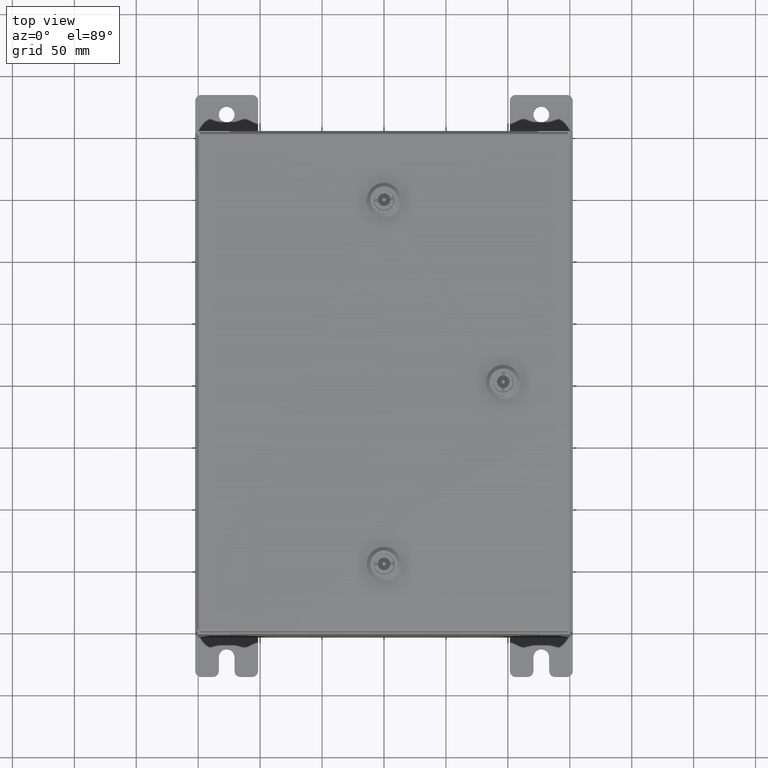
[diagram: clean part render]
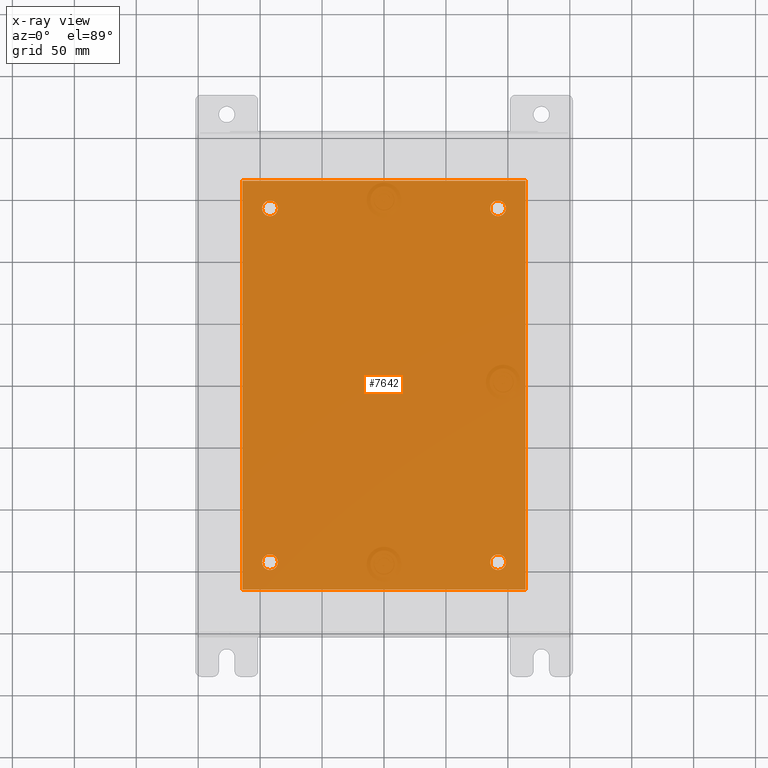
[diagram: x-ray — body ghosted, one internal face saturated and labeled with its STEP entity id]
A machine part, top view, then the same camera in x-ray: the body is ghosted and one INTERNAL B-rep face — a face not visible from any outside direction — is saturated and labeled: STEP entity #7642.
In plain terms, the highlighted planar face has unit normal (0, 0, -1).
Its self-contained STEP definition (entity closure, byte-faithful):
#525 = ORIENTED_EDGE ( 'NONE', *, *, #24019, .T. ) ;
#833 = DIRECTION ( 'NONE',  ( -1.000000000000000000, 0.0000000000000000000, 0.0000000000000000000 ) ) ;
#887 = DIRECTION ( 'NONE',  ( -0.0000000000000000000, -0.0000000000000000000, 1.000000000000000000 ) ) ;
#957 = CARTESIAN_POINT ( 'NONE',  ( 3.625000000000000400, 5.625000000000003600, -0.1039999999999999800 ) ) ;
#1401 = LINE ( 'NONE', #5922, #2977 ) ;
#2257 = AXIS2_PLACEMENT_3D ( 'NONE', #24751, #24680, #24668 ) ;
#2321 = CIRCLE ( 'NONE', #12652, 0.2499999999999998100 ) ;
#2859 = DIRECTION ( 'NONE',  ( -0.0000000000000000000, -0.0000000000000000000, 1.000000000000000000 ) ) ;
#2977 = VECTOR ( 'NONE', #6367, 39.37007874015748100 ) ;
#3469 = AXIS2_PLACEMENT_3D ( 'NONE', #30873, #2859, #35569 ) ;
#3805 = DIRECTION ( 'NONE',  ( 0.0000000000000000000, 0.0000000000000000000, -1.000000000000000000 ) ) ;
#4310 = ORIENTED_EDGE ( 'NONE', *, *, #29989, .T. ) ;
#5922 = CARTESIAN_POINT ( 'NONE',  ( 4.500000000000001800, -6.499999999999999100, -0.1039999999999999800 ) ) ;
#6175 = CARTESIAN_POINT ( 'NONE',  ( 3.874999999999999100, -5.625000000000003600, -0.1039999999999999800 ) ) ;
#6367 = DIRECTION ( 'NONE',  ( 0.0000000000000000000, 1.000000000000000000, 0.0000000000000000000 ) ) ;
#6459 = CARTESIAN_POINT ( 'NONE',  ( 0.0000000000000000000, 0.0000000000000000000, -0.1039999999999999800 ) ) ;
#6609 = CARTESIAN_POINT ( 'NONE',  ( 3.874999999999999100, 5.625000000000003600, -0.1039999999999999800 ) ) ;
#6757 = AXIS2_PLACEMENT_3D ( 'NONE', #26955, #26945, #26905 ) ;
#7225 = VERTEX_POINT ( 'NONE', #38104 ) ;
#7383 = VECTOR ( 'NONE', #56737, 39.37007874015748100 ) ;
#7642 = ADVANCED_FACE ( 'NONE', ( #11108, #22862, #28591, #18595, #58976 ), #33246, .T. ) ;
#7748 = ORIENTED_EDGE ( 'NONE', *, *, #22098, .F. ) ;
#7920 = CARTESIAN_POINT ( 'NONE',  ( -4.499999999999998200, -6.499999999999999100, -0.1039999999999999800 ) ) ;
#8607 = EDGE_CURVE ( 'NONE', #13547, #46009, #38881, .T. ) ;
#10035 = VECTOR ( 'NONE', #44031, 39.37007874015748100 ) ;
#10287 = AXIS2_PLACEMENT_3D ( 'NONE', #957, #887, #833 ) ;
#11108 = FACE_BOUND ( 'NONE', #46879, .T. ) ;
#11463 = VERTEX_POINT ( 'NONE', #19111 ) ;
#11572 = DIRECTION ( 'NONE',  ( 1.000000000000000000, 0.0000000000000000000, 0.0000000000000000000 ) ) ;
#12222 = VERTEX_POINT ( 'NONE', #6175 ) ;
#12652 = AXIS2_PLACEMENT_3D ( 'NONE', #26200, #58998, #30851 ) ;
#13081 = ORIENTED_EDGE ( 'NONE', *, *, #22427, .T. ) ;
#13133 = CIRCLE ( 'NONE', #22283, 0.2499999999999998100 ) ;
#13547 = VERTEX_POINT ( 'NONE', #51709 ) ;
#15418 = DIRECTION ( 'NONE',  ( -1.000000000000000000, 0.0000000000000000000, 0.0000000000000000000 ) ) ;
#15468 = DIRECTION ( 'NONE',  ( -0.0000000000000000000, -0.0000000000000000000, 1.000000000000000000 ) ) ;
#15546 = CARTESIAN_POINT ( 'NONE',  ( 3.625000000000000400, -5.625000000000003600, -0.1039999999999999800 ) ) ;
#16316 = ORIENTED_EDGE ( 'NONE', *, *, #57838, .T. ) ;
#17596 = DIRECTION ( 'NONE',  ( -0.0000000000000000000, -0.0000000000000000000, 1.000000000000000000 ) ) ;
#17725 = DIRECTION ( 'NONE',  ( -1.000000000000000000, 0.0000000000000000000, -0.0000000000000000000 ) ) ;
#18584 = EDGE_LOOP ( 'NONE', ( #49568, #20651 ) ) ;
#18595 = FACE_BOUND ( 'NONE', #27956, .T. ) ;
#18621 = CARTESIAN_POINT ( 'NONE',  ( 3.375000000000001800, 5.625000000000003600, -0.1039999999999999800 ) ) ;
#19111 = CARTESIAN_POINT ( 'NONE',  ( -3.875000000000000000, -5.625000000000003600, -0.1039999999999999800 ) ) ;
#20651 = ORIENTED_EDGE ( 'NONE', *, *, #31621, .T. ) ;
#20997 = EDGE_LOOP ( 'NONE', ( #7748, #59460, #53100, #52920 ) ) ;
#21060 = CARTESIAN_POINT ( 'NONE',  ( 4.500000000000001800, -6.499999999999999100, -0.1039999999999999800 ) ) ;
#21849 = EDGE_CURVE ( 'NONE', #55071, #11463, #27757, .T. ) ;
#22098 = EDGE_CURVE ( 'NONE', #46009, #38206, #1401, .T. ) ;
#22283 = AXIS2_PLACEMENT_3D ( 'NONE', #47368, #47290, #47281 ) ;
#22427 = EDGE_CURVE ( 'NONE', #7225, #29603, #13133, .T. ) ;
#22862 = FACE_BOUND ( 'NONE', #53852, .T. ) ;
#24019 = EDGE_CURVE ( 'NONE', #55711, #12222, #24840, .T. ) ;
#24668 = DIRECTION ( 'NONE',  ( -1.000000000000000000, 0.0000000000000000000, 0.0000000000000000000 ) ) ;
#24680 = DIRECTION ( 'NONE',  ( -0.0000000000000000000, -0.0000000000000000000, 1.000000000000000000 ) ) ;
#24751 = CARTESIAN_POINT ( 'NONE',  ( -3.625000000000000400, -5.625000000000003600, -0.1039999999999999800 ) ) ;
#24840 = CIRCLE ( 'NONE', #42955, 0.2499999999999987000 ) ;
#26200 = CARTESIAN_POINT ( 'NONE',  ( -3.625000000000000400, -5.625000000000003600, -0.1039999999999999800 ) ) ;
#26905 = DIRECTION ( 'NONE',  ( -1.000000000000000000, 0.0000000000000000000, 0.0000000000000000000 ) ) ;
#26945 = DIRECTION ( 'NONE',  ( -0.0000000000000000000, -0.0000000000000000000, 1.000000000000000000 ) ) ;
#26955 = CARTESIAN_POINT ( 'NONE',  ( -3.625000000000000400, 5.625000000000003600, -0.1039999999999999800 ) ) ;
#27196 = CARTESIAN_POINT ( 'NONE',  ( 4.500000000000001800, 6.500000000000000900, -0.1039999999999999800 ) ) ;
#27757 = CIRCLE ( 'NONE', #2257, 0.2499999999999998100 ) ;
#27956 = EDGE_LOOP ( 'NONE', ( #13081, #4310 ) ) ;
#28591 = FACE_BOUND ( 'NONE', #18584, .T. ) ;
#28665 = ORIENTED_EDGE ( 'NONE', *, *, #21849, .T. ) ;
#29546 = ORIENTED_EDGE ( 'NONE', *, *, #54209, .T. ) ;
#29603 = VERTEX_POINT ( 'NONE', #50718 ) ;
#29989 = EDGE_CURVE ( 'NONE', #29603, #7225, #46864, .T. ) ;
#30851 = DIRECTION ( 'NONE',  ( -1.000000000000000000, 0.0000000000000000000, 0.0000000000000000000 ) ) ;
#30873 = CARTESIAN_POINT ( 'NONE',  ( 3.625000000000000400, -5.625000000000003600, -0.1039999999999999800 ) ) ;
#31621 = EDGE_CURVE ( 'NONE', #38603, #60612, #53572, .T. ) ;
#32731 = CARTESIAN_POINT ( 'NONE',  ( -4.499999999999998200, 6.500000000000000900, -0.1039999999999999800 ) ) ;
#33246 = PLANE ( 'NONE',  #34602 ) ;
#34602 = AXIS2_PLACEMENT_3D ( 'NONE', #6459, #3805, #17725 ) ;
#35569 = DIRECTION ( 'NONE',  ( -1.000000000000000000, 0.0000000000000000000, 0.0000000000000000000 ) ) ;
#38047 = EDGE_CURVE ( 'NONE', #38206, #40326, #47433, .T. ) ;
#38058 = CARTESIAN_POINT ( 'NONE',  ( -4.499999999999998200, -6.499999999999999100, -0.1039999999999999800 ) ) ;
#38104 = CARTESIAN_POINT ( 'NONE',  ( -3.375000000000000400, 5.625000000000003600, -0.1039999999999999800 ) ) ;
#38206 = VERTEX_POINT ( 'NONE', #27196 ) ;
#38603 = VERTEX_POINT ( 'NONE', #18621 ) ;
#38754 = AXIS2_PLACEMENT_3D ( 'NONE', #45667, #17596, #50334 ) ;
#38762 = CARTESIAN_POINT ( 'NONE',  ( 3.375000000000001800, -5.625000000000003600, -0.1039999999999999800 ) ) ;
#38881 = LINE ( 'NONE', #7920, #44179 ) ;
#40326 = VERTEX_POINT ( 'NONE', #32731 ) ;
#42886 = EDGE_CURVE ( 'NONE', #60612, #38603, #52963, .T. ) ;
#42955 = AXIS2_PLACEMENT_3D ( 'NONE', #15546, #15468, #15418 ) ;
#44017 = CARTESIAN_POINT ( 'NONE',  ( -4.499999999999998200, 6.500000000000000900, -0.1039999999999999800 ) ) ;
#44031 = DIRECTION ( 'NONE',  ( -1.000000000000000000, -0.0000000000000000000, -0.0000000000000000000 ) ) ;
#44179 = VECTOR ( 'NONE', #11572, 39.37007874015748100 ) ;
#44813 = LINE ( 'NONE', #38058, #7383 ) ;
#45667 = CARTESIAN_POINT ( 'NONE',  ( 3.625000000000000400, 5.625000000000003600, -0.1039999999999999800 ) ) ;
#46009 = VERTEX_POINT ( 'NONE', #21060 ) ;
#46864 = CIRCLE ( 'NONE', #6757, 0.2499999999999998100 ) ;
#46879 = EDGE_LOOP ( 'NONE', ( #28665, #29546 ) ) ;
#47281 = DIRECTION ( 'NONE',  ( -1.000000000000000000, 0.0000000000000000000, 0.0000000000000000000 ) ) ;
#47290 = DIRECTION ( 'NONE',  ( -0.0000000000000000000, -0.0000000000000000000, 1.000000000000000000 ) ) ;
#47368 = CARTESIAN_POINT ( 'NONE',  ( -3.625000000000000400, 5.625000000000003600, -0.1039999999999999800 ) ) ;
#47433 = LINE ( 'NONE', #44017, #10035 ) ;
#49144 = CIRCLE ( 'NONE', #3469, 0.2499999999999987000 ) ;
#49568 = ORIENTED_EDGE ( 'NONE', *, *, #42886, .T. ) ;
#49624 = CARTESIAN_POINT ( 'NONE',  ( -3.375000000000000400, -5.625000000000003600, -0.1039999999999999800 ) ) ;
#50334 = DIRECTION ( 'NONE',  ( -1.000000000000000000, 0.0000000000000000000, 0.0000000000000000000 ) ) ;
#50718 = CARTESIAN_POINT ( 'NONE',  ( -3.875000000000000000, 5.625000000000003600, -0.1039999999999999800 ) ) ;
#51709 = CARTESIAN_POINT ( 'NONE',  ( -4.499999999999998200, -6.499999999999999100, -0.1039999999999999800 ) ) ;
#52920 = ORIENTED_EDGE ( 'NONE', *, *, #38047, .F. ) ;
#52963 = CIRCLE ( 'NONE', #38754, 0.2499999999999987000 ) ;
#53100 = ORIENTED_EDGE ( 'NONE', *, *, #55520, .F. ) ;
#53572 = CIRCLE ( 'NONE', #10287, 0.2499999999999987000 ) ;
#53852 = EDGE_LOOP ( 'NONE', ( #16316, #525 ) ) ;
#54209 = EDGE_CURVE ( 'NONE', #11463, #55071, #2321, .T. ) ;
#55071 = VERTEX_POINT ( 'NONE', #49624 ) ;
#55520 = EDGE_CURVE ( 'NONE', #40326, #13547, #44813, .T. ) ;
#55711 = VERTEX_POINT ( 'NONE', #38762 ) ;
#56737 = DIRECTION ( 'NONE',  ( -0.0000000000000000000, -1.000000000000000000, -0.0000000000000000000 ) ) ;
#57838 = EDGE_CURVE ( 'NONE', #12222, #55711, #49144, .T. ) ;
#58976 = FACE_OUTER_BOUND ( 'NONE', #20997, .T. ) ;
#58998 = DIRECTION ( 'NONE',  ( -0.0000000000000000000, -0.0000000000000000000, 1.000000000000000000 ) ) ;
#59460 = ORIENTED_EDGE ( 'NONE', *, *, #8607, .F. ) ;
#60612 = VERTEX_POINT ( 'NONE', #6609 ) ;